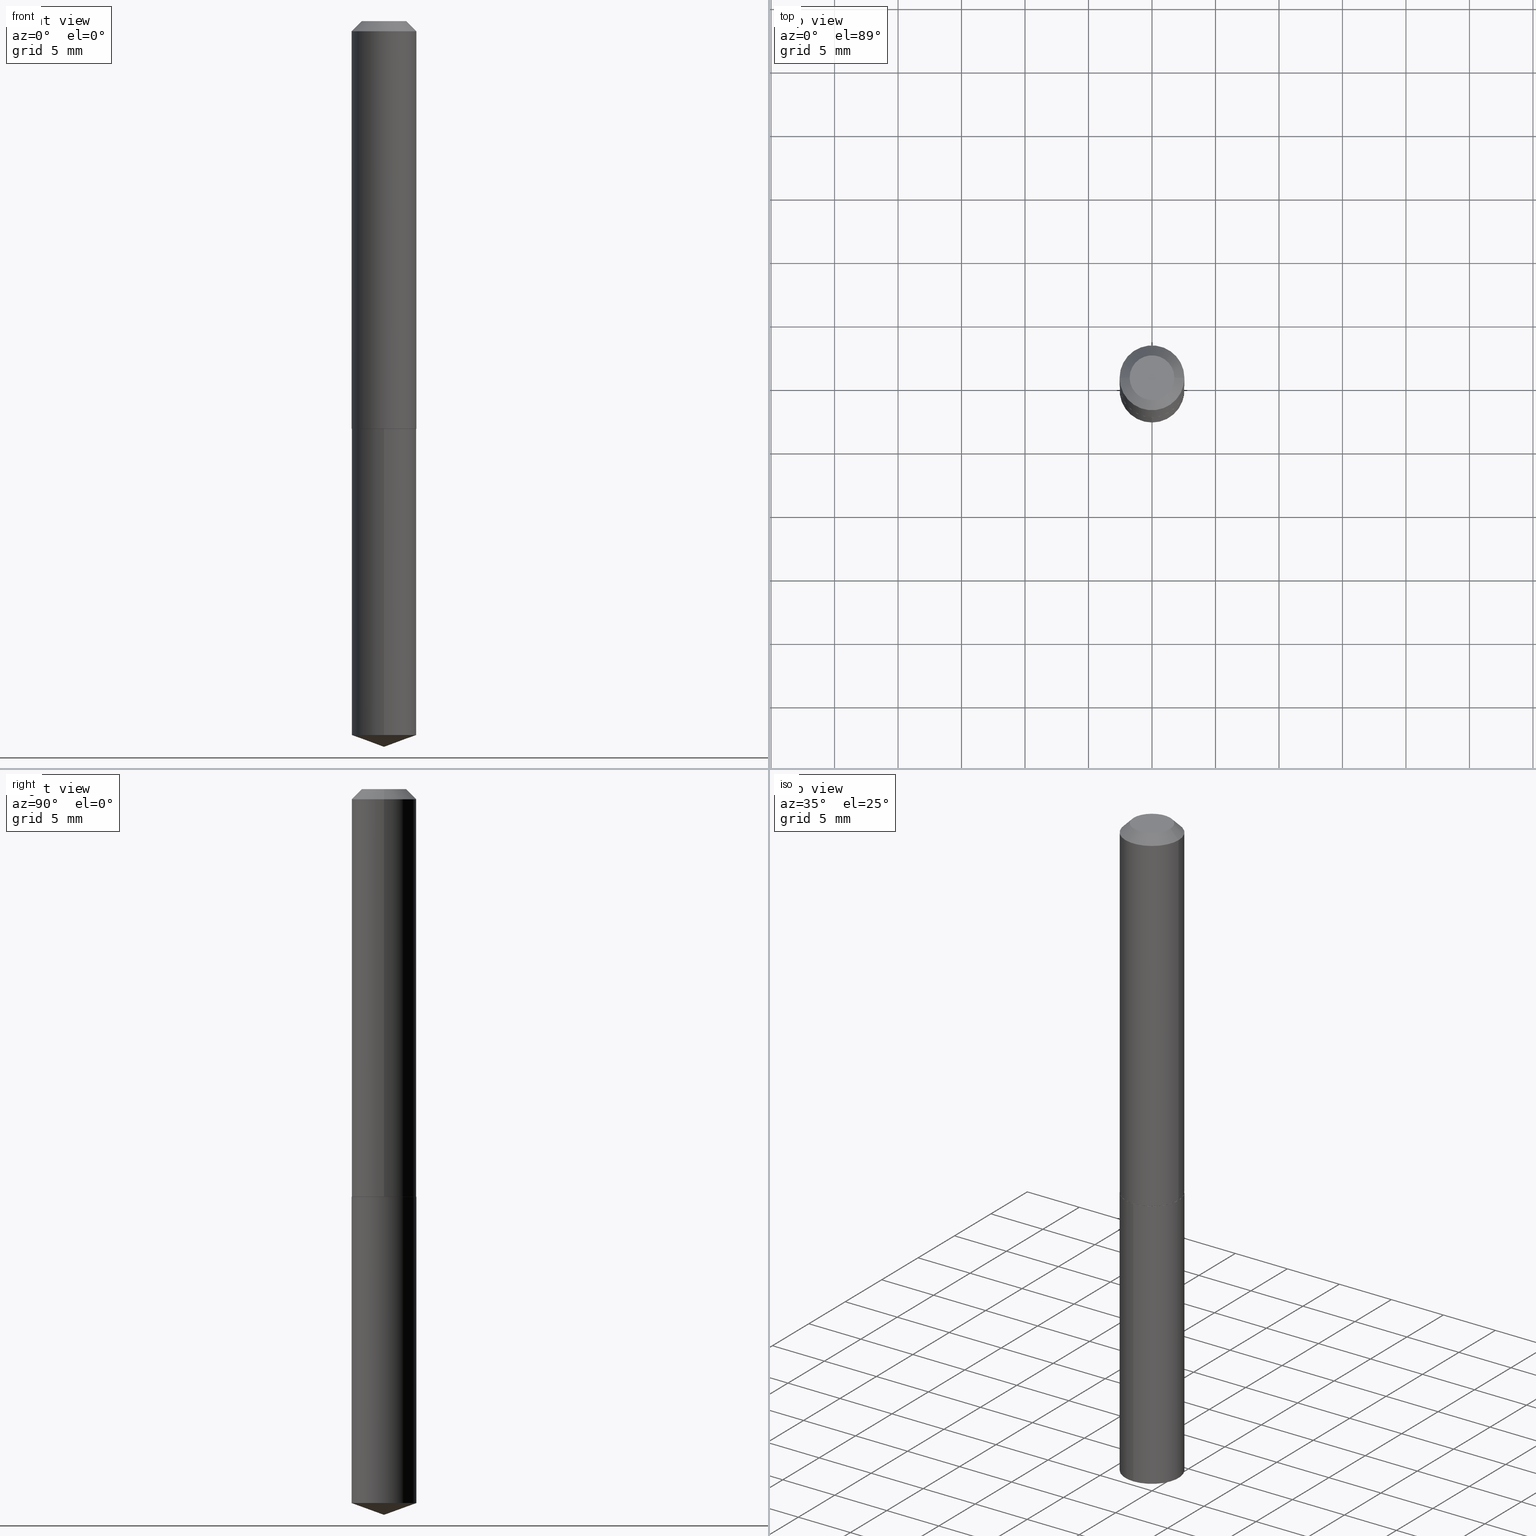
[diagram: canonical four-view strip — front | top / right | iso, engineering-drawing reading convention]
A machine part, canonical four-view strip (front | top / right | iso — engineering-drawing reading convention). The complete STEP part file that produces these views, byte-faithful:
ISO-10303-21;
HEADER;
FILE_DESCRIPTION (( 'STEP AP203' ),
    '1' );
FILE_NAME ('56216.STEP',
    '2024-04-22T21:00:10',
    ( '' ),
    ( '' ),
    'SwSTEP 2.0',
    'SolidWorks 2023',
    '' );
FILE_SCHEMA (( 'CONFIG_CONTROL_DESIGN' ));
ENDSEC;

DATA;
#1 = EDGE_LOOP ( 'NONE', ( #17, #91 ) ) ;
#2 = PERSON_AND_ORGANIZATION ( #50, #258 ) ;
#3 = AXIS2_PLACEMENT_3D ( 'NONE', #63, #186, #180 ) ;
#4 = CARTESIAN_POINT ( 'NONE',  ( 3.088627102211827979E-29, -4.409740930958893142E-15, -1.263000000000000123 ) ) ;
#5 = CARTESIAN_POINT ( 'NONE',  ( 3.088627102211827979E-29, -4.409740930958893142E-15, -1.263000000000000123 ) ) ;
#6 = CARTESIAN_POINT ( 'NONE',  ( 3.089849836614920220E-29, -4.411486671628314645E-15, -1.263500000000000068 ) ) ;
#7 = EDGE_CURVE ( 'NONE', #239, #274, #223, .T. ) ;
#8 = ORIENTED_EDGE ( 'NONE', *, *, #114, .T. ) ;
#9 = DIRECTION ( 'NONE',  ( 2.438088387897960049E-29, -3.491481338843145188E-15, -1.000000000000000000 ) ) ;
#10 = PLANE ( 'NONE',  #82 ) ;
#11 = EDGE_LOOP ( 'NONE', ( #272, #166, #182, #125 ) ) ;
#12 = APPROVAL_DATE_TIME ( #316, #390 ) ;
#13 = CARTESIAN_POINT ( 'NONE',  ( -0.1005000000000001864, -3.695645481519991426E-15, -1.263000000000000123 ) ) ;
#14 = AXIS2_PLACEMENT_3D ( 'NONE', #5, #187, #322 ) ;
#15 = CONICAL_SURFACE ( 'NONE', #32, 0.1005000000000000060, 0.7853981633974450594 ) ;
#16 = VERTEX_POINT ( 'NONE', #365 ) ;
#17 = ORIENTED_EDGE ( 'NONE', *, *, #311, .T. ) ;
#18 = DIRECTION ( 'NONE',  ( 0.7071067811865452413, -7.319954787623248157E-15, -0.7071067811865497932 ) ) ;
#19 = AXIS2_PLACEMENT_3D ( 'NONE', #363, #100, #36 ) ;
#20 = CC_DESIGN_SECURITY_CLASSIFICATION ( #113, ( #155 ) ) ;
#21 = CARTESIAN_POINT ( 'NONE',  ( 0.000000000000000000, 0.000000000000000000, 0.000000000000000000 ) ) ;
#22 = CARTESIAN_POINT ( 'NONE',  ( -0.1005000000000000893, 7.140954494389013210E-16, -4.943529765706185016E-30 ) ) ;
#23 = ADVANCED_FACE ( 'NONE', ( #222 ), #339, .T. ) ;
#24 = CIRCLE ( 'NONE', #261, 0.1000000000000001582 ) ;
#25 = EDGE_LOOP ( 'NONE', ( #299, #128, #185, #93 ) ) ;
#26 = ORIENTED_EDGE ( 'NONE', *, *, #41, .T. ) ;
#27 = DIRECTION ( 'NONE',  ( 1.000000000000000000, -6.982962677686266711E-15, 0.000000000000000000 ) ) ;
#28 = ORIENTED_EDGE ( 'NONE', *, *, #68, .T. ) ;
#29 = DIRECTION ( 'NONE',  ( -1.000000000000000000, 6.982962677686266711E-15, 0.000000000000000000 ) ) ;
#30 = PERSON_AND_ORGANIZATION ( #50, #258 ) ;
#31 = AXIS2_PLACEMENT_3D ( 'NONE', #107, #375, #99 ) ;
#32 = AXIS2_PLACEMENT_3D ( 'NONE', #183, #385, #29 ) ;
#33 = ORIENTED_EDGE ( 'NONE', *, *, #109, .F. ) ;
#34 = PERSON_AND_ORGANIZATION ( #50, #258 ) ;
#35 = FACE_OUTER_BOUND ( 'NONE', #156, .T. ) ;
#36 = DIRECTION ( 'NONE',  ( 1.000000000000000000, -6.982962677686267499E-15, 4.876166693236633478E-29 ) ) ;
#37 = DIRECTION ( 'NONE',  ( -2.445468806185136597E-29, 3.491481338843145583E-15, 1.000000000000000000 ) ) ;
#38 = APPROVAL_ROLE ( '' ) ;
#39 = CARTESIAN_POINT ( 'NONE',  ( 3.088627102211827979E-29, -4.409740930958893142E-15, -1.263000000000000123 ) ) ;
#40 = DIRECTION ( 'NONE',  ( -1.000000000000000000, 6.982962677686266711E-15, 0.000000000000000000 ) ) ;
#41 = EDGE_CURVE ( 'NONE', #72, #58, #51, .T. ) ;
#42 = FACE_OUTER_BOUND ( 'NONE', #1, .T. ) ;
#43 = EDGE_LOOP ( 'NONE', ( #286, #207, #150, #370 ) ) ;
#44 = CARTESIAN_POINT ( 'NONE',  ( 3.089849836614920220E-29, -4.411486671628314645E-15, -1.263500000000000068 ) ) ;
#45 = CARTESIAN_POINT ( 'NONE',  ( 7.140954494389547664E-16, 0.1004999999999922899, -2.213420991456247044 ) ) ;
#46 = ADVANCED_FACE ( 'NONE', ( #309 ), #269, .T. ) ;
#47 = APPROVAL_PERSON_ORGANIZATION ( #284, #390, #81 ) ;
#48 = DIRECTION ( 'NONE',  ( -6.982962677686265922E-15, -1.000000000000000000, 2.718256710113694497E-15 ) ) ;
#49 = PRODUCT_DEFINITION ( 'UNKNOWN', '', #155, #54 ) ;
#50 = PERSON ( 'UNSPECIFIED', 'UNSPECIFIED', 'UNSPECIFIED', ('UNSPECIFIED'), ('UNSPECIFIED'), ('UNSPECIFIED') ) ;
#51 = CIRCLE ( 'NONE', #65, 0.1005000000000000060 ) ;
#52 = APPROVAL_PERSON_ORGANIZATION ( #228, #334, #264 ) ;
#53 = CC_DESIGN_DATE_AND_TIME_ASSIGNMENT ( #332, #71, ( #49 ) ) ;
#54 = DESIGN_CONTEXT ( 'detailed design', #226, 'design' ) ;
#55 = DIRECTION ( 'NONE',  ( -6.982962677686268288E-15, -1.000000000000000000, 3.475157955500721397E-15 ) ) ;
#56 = LOCAL_TIME ( 17, 0, 10.00000000000000000, #88 ) ;
#57 = DIRECTION ( 'NONE',  ( -2.445407863595241292E-29, 3.491568612100512464E-15, 1.000000000000000000 ) ) ;
#58 = VERTEX_POINT ( 'NONE', #45 ) ;
#59 = PRODUCT_DEFINITION_SHAPE ( 'NONE', 'NONE',  #49 ) ;
#60 = DIRECTION ( 'NONE',  ( 1.000000000000000000, -6.982962677686265922E-15, 4.876176775795935793E-29 ) ) ;
#61 = CALENDAR_DATE ( 2024, 22, 4 ) ;
#62 = ORIENTED_EDGE ( 'NONE', *, *, #116, .T. ) ;
#63 = CARTESIAN_POINT ( 'NONE',  ( 7.642090019328600035E-31, -1.091087918388489897E-16, -0.03125000000000020123 ) ) ;
#64 = PERSON_AND_ORGANIZATION_ROLE ( 'design_supplier' ) ;
#65 = AXIS2_PLACEMENT_3D ( 'NONE', #101, #195, #338 ) ;
#66 = CC_DESIGN_PERSON_AND_ORGANIZATION_ASSIGNMENT ( #34, #129, ( #113 ) ) ;
#67 = VECTOR ( 'NONE', #18, 39.37007874015748143 ) ;
#68 = EDGE_CURVE ( 'NONE', #72, #298, #256, .T. ) ;
#69 = CARTESIAN_POINT ( 'NONE',  ( -0.1000000000000001582, -3.698294708694102627E-15, -1.263500000000000290 ) ) ;
#70 = DIRECTION ( 'NONE',  ( 1.000000000000000000, -6.982962677686267499E-15, 4.876166693236633478E-29 ) ) ;
#71 = DATE_TIME_ROLE ( 'creation_date' ) ;
#72 = VERTEX_POINT ( 'NONE', #75 ) ;
#73 = DATE_AND_TIME ( #184, #368 ) ;
#74 = DIRECTION ( 'NONE',  ( -6.982962677686265922E-15, -1.000000000000000000, 2.718256710113694497E-15 ) ) ;
#75 = CARTESIAN_POINT ( 'NONE',  ( -7.017877491074157398E-16, -0.1005000000000077498, -2.213420991456246600 ) ) ;
#76 = CLOSED_SHELL ( 'NONE', ( #358, #232, #168, #205, #377 ) ) ;
#77 = VECTOR ( 'NONE', #386, 39.37007874015748143 ) ;
#78 = ORIENTED_EDGE ( 'NONE', *, *, #116, .F. ) ;
#79 = EDGE_CURVE ( 'NONE', #179, #94, #366, .T. ) ;
#80 = LINE ( 'NONE', #198, #378 ) ;
#81 = APPROVAL_ROLE ( '' ) ;
#82 = AXIS2_PLACEMENT_3D ( 'NONE', #44, #285, #197 ) ;
#83 = CC_DESIGN_PERSON_AND_ORGANIZATION_ASSIGNMENT ( #30, #64, ( #155 ) ) ;
#84 = AXIS2_PLACEMENT_3D ( 'NONE', #278, #312, #48 ) ;
#85 = CARTESIAN_POINT ( 'NONE',  ( 6.795476340220440399E-30, -7.863176611623106484E-15, -1.263500000000000290 ) ) ;
#86 = CARTESIAN_POINT ( 'NONE',  ( -0.06925000000000000600, 5.381245613491975063E-16, -1.836970198756736818E-19 ) ) ;
#87 = APPLICATION_PROTOCOL_DEFINITION ( 'international standard', 'config_control_design', 1994, #226 ) ;
#88 = COORDINATED_UNIVERSAL_TIME_OFFSET ( 5, 0, .BEHIND. ) ;
#89 = FACE_OUTER_BOUND ( 'NONE', #105, .T. ) ;
#90 = CONICAL_SURFACE ( 'NONE', #255, 108.1684023407334223, 1.221730476396031495 ) ;
#91 = ORIENTED_EDGE ( 'NONE', *, *, #194, .T. ) ;
#92 = PERSON_AND_ORGANIZATION_ROLE ( 'design_owner' ) ;
#93 = ORIENTED_EDGE ( 'NONE', *, *, #79, .F. ) ;
#94 = VERTEX_POINT ( 'NONE', #336 ) ;
#95 = PERSON_AND_ORGANIZATION_ROLE ( 'creator' ) ;
#96 = ORIENTED_EDGE ( 'NONE', *, *, #279, .T. ) ;
#97 = EDGE_CURVE ( 'NONE', #214, #16, #24, .T. ) ;
#98 = AXIS2_PLACEMENT_3D ( 'NONE', #351, #319, #27 ) ;
#99 = DIRECTION ( 'NONE',  ( 1.000000000000000000, -6.982962677686267499E-15, 0.000000000000000000 ) ) ;
#100 = DIRECTION ( 'NONE',  ( -2.445468806185136597E-29, 3.491481338843145583E-15, 1.000000000000000000 ) ) ;
#101 = CARTESIAN_POINT ( 'NONE',  ( 5.412794098916213992E-29, -7.728200989372345435E-15, -2.213420991456246600 ) ) ;
#102 = CYLINDRICAL_SURFACE ( 'NONE', #246, 0.1005000000000000060 ) ;
#103 = CIRCLE ( 'NONE', #212, 0.1005000000000000060 ) ;
#104 = EDGE_CURVE ( 'NONE', #16, #214, #276, .T. ) ;
#105 = EDGE_LOOP ( 'NONE', ( #158, #8, #28, #244 ) ) ;
#106 = CARTESIAN_POINT ( 'NONE',  ( 5.502167693089292275E-29, -7.856029377226152946E-15, -2.250000000000000000 ) ) ;
#107 = CARTESIAN_POINT ( 'NONE',  ( 3.088627102211827979E-29, -4.409740930958893142E-15, -1.263000000000000123 ) ) ;
#108 = DIRECTION ( 'NONE',  ( -2.445468806185136597E-29, 3.491481338843145583E-15, 1.000000000000000000 ) ) ;
#109 = EDGE_CURVE ( 'NONE', #94, #235, #80, .T. ) ;
#110 = MANIFOLD_SOLID_BREP ( 'Body-Move/Copy2[2]', #236 ) ;
#111 = UNCERTAINTY_MEASURE_WITH_UNIT (LENGTH_MEASURE( 1.000000000000000082E-05 ), #227, 'distance_accuracy_value', 'NONE');
#112 = FACE_OUTER_BOUND ( 'NONE', #134, .T. ) ;
#113 = SECURITY_CLASSIFICATION ( '', '', #157 ) ;
#114 = EDGE_CURVE ( 'NONE', #58, #72, #253, .T. ) ;
#115 = PERSON_AND_ORGANIZATION ( #50, #258 ) ;
#116 = EDGE_CURVE ( 'NONE', #94, #179, #346, .T. ) ;
#117 = DIRECTION ( 'NONE',  ( -2.445407863595241292E-29, 3.491568612100512464E-15, 1.000000000000000000 ) ) ;
#118 = ORIENTED_EDGE ( 'NONE', *, *, #361, .F. ) ;
#119 =( NAMED_UNIT ( * ) SI_UNIT ( $, .STERADIAN. ) SOLID_ANGLE_UNIT ( ) );
#120 = AXIS2_PLACEMENT_3D ( 'NONE', #333, #9, #133 ) ;
#121 = VERTEX_POINT ( 'NONE', #326 ) ;
#122 = LINE ( 'NONE', #208, #238 ) ;
#123 = PERSON_AND_ORGANIZATION ( #50, #258 ) ;
#124 = ADVANCED_FACE ( 'NONE', ( #318 ), #297, .T. ) ;
#125 = ORIENTED_EDGE ( 'NONE', *, *, #164, .F. ) ;
#126 =( NAMED_UNIT ( * ) PLANE_ANGLE_UNIT ( ) SI_UNIT ( $, .RADIAN. ) );
#127 = DIRECTION ( 'NONE',  ( -2.445407863595241292E-29, 3.491568612100512464E-15, 1.000000000000000000 ) ) ;
#128 = ORIENTED_EDGE ( 'NONE', *, *, #97, .T. ) ;
#129 = PERSON_AND_ORGANIZATION_ROLE ( 'classification_officer' ) ;
#130 = ORIENTED_EDGE ( 'NONE', *, *, #211, .T. ) ;
#131 = DIRECTION ( 'NONE',  ( -6.561838499445203218E-15, -0.9396926207859074287, 0.3420201433256712664 ) ) ;
#132 = EDGE_LOOP ( 'NONE', ( #62, #165, #280, #33 ) ) ;
#133 = DIRECTION ( 'NONE',  ( -1.000000000000000000, 6.982962677686265922E-15, -4.876176775795935793E-29 ) ) ;
#134 = EDGE_LOOP ( 'NONE', ( #206, #355 ) ) ;
#135 = LINE ( 'NONE', #344, #293 ) ;
#136 = APPLICATION_CONTEXT ( 'configuration controlled 3d designs of mechanical parts and assemblies' ) ;
#137 = APPROVAL ( #275, 'UNSPECIFIED' ) ;
#138 = CARTESIAN_POINT ( 'NONE',  ( 0.000000000000000000, 0.000000000000000000, 0.000000000000000000 ) ) ;
#139 = LINE ( 'NONE', #315, #67 ) ;
#140 = DIRECTION ( 'NONE',  ( -2.445468806185136597E-29, 3.491481338843145583E-15, 1.000000000000000000 ) ) ;
#141 = ADVANCED_FACE ( 'NONE', ( #112 ), #230, .F. ) ;
#142 = DIRECTION ( 'NONE',  ( -2.445407863595241292E-29, 3.491568612100512464E-15, 1.000000000000000000 ) ) ;
#143 =( LENGTH_UNIT ( ) NAMED_UNIT ( * ) SI_UNIT ( $, .METRE. ) );
#144 = ADVANCED_BREP_SHAPE_REPRESENTATION ( '56216', ( #374, #110, #225 ), #178 ) ;
#145 = DIRECTION ( 'NONE',  ( -2.445468806185136877E-29, 3.491481338843145188E-15, 1.000000000000000000 ) ) ;
#146 = AXIS2_PLACEMENT_3D ( 'NONE', #21, #237, #149 ) ;
#147 = APPROVAL_STATUS ( 'not_yet_approved' ) ;
#148 = EDGE_LOOP ( 'NONE', ( #26, #130, #210, #384 ) ) ;
#149 = DIRECTION ( 'NONE',  ( 1.000000000000000000, -6.982962677686266711E-15, 4.876176775795935793E-29 ) ) ;
#150 = ORIENTED_EDGE ( 'NONE', *, *, #7, .T. ) ;
#151 = CC_DESIGN_PERSON_AND_ORGANIZATION_ASSIGNMENT ( #123, #242, ( #49 ) ) ;
#152 = CARTESIAN_POINT ( 'NONE',  ( 0.1005000000000000060, -8.108965409463188774E-16, -0.03125000000000020123 ) ) ;
#153 = FACE_OUTER_BOUND ( 'NONE', #267, .T. ) ;
#154 = VECTOR ( 'NONE', #257, 39.37007874015748143 ) ;
#155 = PRODUCT_DEFINITION_FORMATION_WITH_SPECIFIED_SOURCE ( 'ANY', '', #387, .NOT_KNOWN. ) ;
#156 = EDGE_LOOP ( 'NONE', ( #169, #290 ) ) ;
#157 = SECURITY_CLASSIFICATION_LEVEL ( 'unclassified' ) ;
#158 = ORIENTED_EDGE ( 'NONE', *, *, #211, .F. ) ;
#159 = FACE_OUTER_BOUND ( 'NONE', #43, .T. ) ;
#160 = PERSON_AND_ORGANIZATION ( #50, #258 ) ;
#161 = DIRECTION ( 'NONE',  ( 1.000000000000000000, -6.982962677686263555E-15, 0.000000000000000000 ) ) ;
#162 = DIRECTION ( 'NONE',  ( 0.7071067811864388819, -2.468850131081119129E-15, 0.7071067811866561525 ) ) ;
#163 = CALENDAR_DATE ( 2024, 22, 4 ) ;
#164 = EDGE_CURVE ( 'NONE', #274, #235, #359, .T. ) ;
#165 = ORIENTED_EDGE ( 'NONE', *, *, #202, .T. ) ;
#166 = ORIENTED_EDGE ( 'NONE', *, *, #79, .T. ) ;
#167 = PRODUCT_RELATED_PRODUCT_CATEGORY ( 'detail', '', ( #387 ) ) ;
#168 = ADVANCED_FACE ( 'NONE', ( #153 ), #90, .T. ) ;
#169 = ORIENTED_EDGE ( 'NONE', *, *, #335, .T. ) ;
#170 = DIRECTION ( 'NONE',  ( 6.676917655467968129E-15, 0.9396926207859097602, 0.3420201433256646606 ) ) ;
#171 = AXIS2_PLACEMENT_3D ( 'NONE', #306, #376, #40 ) ;
#172 = DIRECTION ( 'NONE',  ( 1.000000000000000000, -6.982962677686263555E-15, 0.000000000000000000 ) ) ;
#173 = DATE_AND_TIME ( #163, #331 ) ;
#174 = CARTESIAN_POINT ( 'NONE',  ( -9.077365544749331106E-28, 1.296074120775940767E-13, 37.12007874015748143 ) ) ;
#175 = LENGTH_MEASURE_WITH_UNIT ( LENGTH_MEASURE( 0.02539999999999999897 ), #143 );
#176 = CARTESIAN_POINT ( 'NONE',  ( -9.077365544749331106E-28, 1.296074120775940767E-13, 37.12007874015748143 ) ) ;
#177 = DIRECTION ( 'NONE',  ( -0.7071067811864388819, 7.493145998869961307E-15, 0.7071067811866561525 ) ) ;
#178 =( GEOMETRIC_REPRESENTATION_CONTEXT ( 3 ) GLOBAL_UNCERTAINTY_ASSIGNED_CONTEXT ( ( #111 ) ) GLOBAL_UNIT_ASSIGNED_CONTEXT ( ( #227, #126, #119 ) ) REPRESENTATION_CONTEXT ( 'NONE', 'WORKASPACE' ) );
#179 = VERTEX_POINT ( 'NONE', #270 ) ;
#180 = DIRECTION ( 'NONE',  ( 1.000000000000000000, -6.982962677686266711E-15, 0.000000000000000000 ) ) ;
#181 = DATE_AND_TIME ( #325, #56 ) ;
#182 = ORIENTED_EDGE ( 'NONE', *, *, #109, .T. ) ;
#183 = CARTESIAN_POINT ( 'NONE',  ( 7.642090019328600035E-31, -1.091087918388489897E-16, -0.03125000000000020123 ) ) ;
#184 = CALENDAR_DATE ( 2024, 22, 4 ) ;
#185 = ORIENTED_EDGE ( 'NONE', *, *, #303, .T. ) ;
#186 = DIRECTION ( 'NONE',  ( -2.445468806185136597E-29, 3.491481338843145583E-15, 1.000000000000000000 ) ) ;
#187 = DIRECTION ( 'NONE',  ( -2.445468806185136597E-29, 3.491481338843145583E-15, 1.000000000000000000 ) ) ;
#188 = COORDINATED_UNIVERSAL_TIME_OFFSET ( 5, 0, .BEHIND. ) ;
#189 = DIRECTION ( 'NONE',  ( 1.000000000000000000, -6.982962677686267499E-15, 0.000000000000000000 ) ) ;
#190 = DIRECTION ( 'NONE',  ( -2.445468806185136597E-29, 3.491481338843145583E-15, 1.000000000000000000 ) ) ;
#191 = VECTOR ( 'NONE', #177, 39.37007874015748143 ) ;
#192 = DIRECTION ( 'NONE',  ( -6.982962677686265922E-15, -1.000000000000000000, 2.718256710113694497E-15 ) ) ;
#193 = COORDINATED_UNIVERSAL_TIME_OFFSET ( 5, 0, .BEHIND. ) ;
#194 = EDGE_CURVE ( 'NONE', #121, #298, #103, .T. ) ;
#195 = DIRECTION ( 'NONE',  ( -2.445407863595241292E-29, 3.491568612100512464E-15, 1.000000000000000000 ) ) ;
#196 = CARTESIAN_POINT ( 'NONE',  ( 3.089849836614920220E-29, -4.411486671628314645E-15, -1.263500000000000068 ) ) ;
#197 = DIRECTION ( 'NONE',  ( 6.982962677686265922E-15, 1.000000000000000000, -3.491568612100512070E-15 ) ) ;
#198 = CARTESIAN_POINT ( 'NONE',  ( 0.1005000000000000893, -7.017877491074704671E-16, 4.900557659674919900E-30 ) ) ;
#199 = AXIS2_PLACEMENT_3D ( 'NONE', #4, #389, #189 ) ;
#200 = VECTOR ( 'NONE', #362, 39.37007874015748143 ) ;
#201 = CC_DESIGN_APPROVAL ( #137, ( #155 ) ) ;
#202 = EDGE_CURVE ( 'NONE', #179, #274, #234, .T. ) ;
#203 = DIRECTION ( 'NONE',  ( -2.438088387897960049E-29, 3.491481338843145188E-15, 1.000000000000000000 ) ) ;
#204 = CONICAL_SURFACE ( 'NONE', #199, 0.1005000000000001864, 0.7853981633972946241 ) ;
#205 = ADVANCED_FACE ( 'NONE', ( #89 ), #263, .T. ) ;
#206 = ORIENTED_EDGE ( 'NONE', *, *, #104, .F. ) ;
#207 = ORIENTED_EDGE ( 'NONE', *, *, #335, .F. ) ;
#208 = CARTESIAN_POINT ( 'NONE',  ( 5.502167693089292275E-29, -7.856029377226152946E-15, -2.250000000000000000 ) ) ;
#209 = COORDINATED_UNIVERSAL_TIME_OFFSET ( 5, 0, .BEHIND. ) ;
#210 = ORIENTED_EDGE ( 'NONE', *, *, #311, .F. ) ;
#211 = EDGE_CURVE ( 'NONE', #58, #121, #249, .T. ) ;
#212 = AXIS2_PLACEMENT_3D ( 'NONE', #292, #57, #265 ) ;
#213 = DIRECTION ( 'NONE',  ( -6.982962677686265922E-15, -1.000000000000000000, 2.718256710113694497E-15 ) ) ;
#214 = VERTEX_POINT ( 'NONE', #69 ) ;
#215 = DIRECTION ( 'NONE',  ( -2.445468806185136597E-29, 3.491481338843145583E-15, 1.000000000000000000 ) ) ;
#216 = DIRECTION ( 'NONE',  ( -2.445407863595241292E-29, 3.491568612100512464E-15, 1.000000000000000000 ) ) ;
#217 = ORIENTED_EDGE ( 'NONE', *, *, #114, .F. ) ;
#218 = ADVANCED_FACE ( 'NONE', ( #302 ), #204, .T. ) ;
#219 = ORIENTED_EDGE ( 'NONE', *, *, #279, .F. ) ;
#220 = AXIS2_PLACEMENT_3D ( 'NONE', #138, #140, #248 ) ;
#221 = CONICAL_SURFACE ( 'NONE', #171, 0.1005000000000000060, 0.7853981633974450594 ) ;
#222 = FACE_OUTER_BOUND ( 'NONE', #132, .T. ) ;
#223 = LINE ( 'NONE', #250, #200 ) ;
#224 = DIRECTION ( 'NONE',  ( 1.000000000000000000, -6.982962677686267499E-15, 0.000000000000000000 ) ) ;
#225 = AXIS2_PLACEMENT_3D ( 'NONE', #380, #251, #323 ) ;
#226 = APPLICATION_CONTEXT ( 'configuration controlled 3d designs of mechanical parts and assemblies' ) ;
#227 =( CONVERSION_BASED_UNIT ( 'INCH', #175 ) LENGTH_UNIT ( ) NAMED_UNIT ( #383 ) );
#228 = PERSON_AND_ORGANIZATION ( #50, #258 ) ;
#229 = AXIS2_PLACEMENT_3D ( 'NONE', #357, #215, #70 ) ;
#230 = PLANE ( 'NONE',  #287 ) ;
#231 = LOCAL_TIME ( 17, 0, 10.00000000000000000, #193 ) ;
#232 = ADVANCED_FACE ( 'NONE', ( #364 ), #247, .T. ) ;
#233 = EDGE_CURVE ( 'NONE', #214, #179, #308, .T. ) ;
#234 = LINE ( 'NONE', #22, #350 ) ;
#235 = VERTEX_POINT ( 'NONE', #152 ) ;
#236 = CLOSED_SHELL ( 'NONE', ( #345, #23, #46, #141, #218, #124, #295, #342 ) ) ;
#237 = DIRECTION ( 'NONE',  ( -2.445468806185136597E-29, 3.491481338843145583E-15, 1.000000000000000000 ) ) ;
#238 = VECTOR ( 'NONE', #131, 39.37007874015748854 ) ;
#239 = VERTEX_POINT ( 'NONE', #86 ) ;
#240 = CARTESIAN_POINT ( 'NONE',  ( -7.017877491074388140E-16, -0.1005000000000044191, -1.263499999999999845 ) ) ;
#241 = ORIENTED_EDGE ( 'NONE', *, *, #369, .T. ) ;
#242 = PERSON_AND_ORGANIZATION_ROLE ( 'creator' ) ;
#243 = CC_DESIGN_DATE_AND_TIME_ASSIGNMENT ( #173, #340, ( #113 ) ) ;
#244 = ORIENTED_EDGE ( 'NONE', *, *, #194, .F. ) ;
#245 = CARTESIAN_POINT ( 'NONE',  ( 0.06925000000000000600, -6.368391634802832925E-16, -1.836970198681843421E-19 ) ) ;
#246 = AXIS2_PLACEMENT_3D ( 'NONE', #196, #283, #192 ) ;
#247 = CONICAL_SURFACE ( 'NONE', #289, 108.1684023407334223, 1.221730476396031495 ) ;
#248 = DIRECTION ( 'NONE',  ( 1.000000000000000000, -6.982962677686266711E-15, 4.876176775795935793E-29 ) ) ;
#249 = LINE ( 'NONE', #329, #77 ) ;
#250 = CARTESIAN_POINT ( 'NONE',  ( -0.1005000000000000060, 5.926789572686209720E-16, -0.03125000000000020123 ) ) ;
#251 = DIRECTION ( 'NONE',  ( 0.000000000000000000, 0.000000000000000000, 1.000000000000000000 ) ) ;
#252 = ORIENTED_EDGE ( 'NONE', *, *, #373, .F. ) ;
#253 = CIRCLE ( 'NONE', #84, 0.1005000000000000060 ) ;
#254 = APPROVAL_STATUS ( 'not_yet_approved' ) ;
#255 = AXIS2_PLACEMENT_3D ( 'NONE', #176, #117, #55 ) ;
#256 = LINE ( 'NONE', #371, #154 ) ;
#257 = DIRECTION ( 'NONE',  ( -2.445407863595241292E-29, 3.491568612100512070E-15, 1.000000000000000000 ) ) ;
#258 = ORGANIZATION ( 'UNSPECIFIED', 'UNSPECIFIED', '' ) ;
#259 = DIRECTION ( 'NONE',  ( -6.982962677686268288E-15, -1.000000000000000000, 3.475157955500721397E-15 ) ) ;
#260 = CC_DESIGN_PERSON_AND_ORGANIZATION_ASSIGNMENT ( #115, #92, ( #387 ) ) ;
#261 = AXIS2_PLACEMENT_3D ( 'NONE', #341, #190, #161 ) ;
#262 = VECTOR ( 'NONE', #162, 39.37007874015748143 ) ;
#263 = CYLINDRICAL_SURFACE ( 'NONE', #314, 0.1005000000000000060 ) ;
#264 = APPROVAL_ROLE ( '' ) ;
#265 = DIRECTION ( 'NONE',  ( -6.982962677686265922E-15, -1.000000000000000000, 2.718256710113694497E-15 ) ) ;
#266 = EDGE_CURVE ( 'NONE', #235, #274, #277, .T. ) ;
#267 = EDGE_LOOP ( 'NONE', ( #118, #96, #217 ) ) ;
#268 = APPROVAL_DATE_TIME ( #181, #334 ) ;
#269 = CONICAL_SURFACE ( 'NONE', #313, 0.1005000000000001864, 0.7853981633972946241 ) ;
#270 = CARTESIAN_POINT ( 'NONE',  ( -0.1005000000000001864, -3.695645481519991426E-15, -1.263000000000000123 ) ) ;
#271 = CC_DESIGN_APPROVAL ( #334, ( #49 ) ) ;
#272 = ORIENTED_EDGE ( 'NONE', *, *, #202, .F. ) ;
#273 = ORIENTED_EDGE ( 'NONE', *, *, #233, .T. ) ;
#274 = VERTEX_POINT ( 'NONE', #301 ) ;
#275 = APPROVAL_STATUS ( 'not_yet_approved' ) ;
#276 = CIRCLE ( 'NONE', #320, 0.1000000000000001582 ) ;
#277 = CIRCLE ( 'NONE', #3, 0.1005000000000000060 ) ;
#278 = CARTESIAN_POINT ( 'NONE',  ( 5.412794098916213992E-29, -7.728200989372345435E-15, -2.213420991456246600 ) ) ;
#279 = EDGE_CURVE ( 'NONE', #352, #72, #122, .T. ) ;
#280 = ORIENTED_EDGE ( 'NONE', *, *, #266, .F. ) ;
#281 = SHAPE_DEFINITION_REPRESENTATION ( #59, #144 ) ;
#282 = EDGE_LOOP ( 'NONE', ( #219, #381, #307 ) ) ;
#283 = DIRECTION ( 'NONE',  ( -2.445407863595241292E-29, 3.491568612100512464E-15, 1.000000000000000000 ) ) ;
#284 = PERSON_AND_ORGANIZATION ( #50, #258 ) ;
#285 = DIRECTION ( 'NONE',  ( 2.445407863595241292E-29, -3.491568612100512070E-15, -1.000000000000000000 ) ) ;
#286 = ORIENTED_EDGE ( 'NONE', *, *, #369, .F. ) ;
#287 = AXIS2_PLACEMENT_3D ( 'NONE', #85, #203, #60 ) ;
#288 = FACE_OUTER_BOUND ( 'NONE', #330, .T. ) ;
#289 = AXIS2_PLACEMENT_3D ( 'NONE', #174, #142, #259 ) ;
#290 = ORIENTED_EDGE ( 'NONE', *, *, #373, .T. ) ;
#291 = CIRCLE ( 'NONE', #229, 0.06925000000000000600 ) ;
#292 = CARTESIAN_POINT ( 'NONE',  ( 3.089849836614920220E-29, -4.411486671628314645E-15, -1.263500000000000068 ) ) ;
#293 = VECTOR ( 'NONE', #170, 39.37007874015748854 ) ;
#294 = CC_DESIGN_APPROVAL ( #390, ( #113 ) ) ;
#295 = ADVANCED_FACE ( 'NONE', ( #159 ), #15, .T. ) ;
#296 = ORIENTED_EDGE ( 'NONE', *, *, #303, .F. ) ;
#297 = CYLINDRICAL_SURFACE ( 'NONE', #146, 0.1005000000000000893 ) ;
#298 = VERTEX_POINT ( 'NONE', #240 ) ;
#299 = ORIENTED_EDGE ( 'NONE', *, *, #233, .F. ) ;
#300 = CIRCLE ( 'NONE', #19, 0.06925000000000000600 ) ;
#301 = CARTESIAN_POINT ( 'NONE',  ( -0.1005000000000000060, -1.545329411959969209E-15, -0.03125000000000020123 ) ) ;
#302 = FACE_OUTER_BOUND ( 'NONE', #25, .T. ) ;
#303 = EDGE_CURVE ( 'NONE', #16, #94, #353, .T. ) ;
#304 = ORIENTED_EDGE ( 'NONE', *, *, #104, .T. ) ;
#305 = CARTESIAN_POINT ( 'NONE',  ( 3.089849836614920781E-29, -4.411486671628315434E-15, -1.263500000000000290 ) ) ;
#306 = CARTESIAN_POINT ( 'NONE',  ( 7.642090019328600035E-31, -1.091087918388489897E-16, -0.03125000000000020123 ) ) ;
#307 = ORIENTED_EDGE ( 'NONE', *, *, #41, .F. ) ;
#308 = LINE ( 'NONE', #13, #191 ) ;
#309 = FACE_OUTER_BOUND ( 'NONE', #388, .T. ) ;
#310 = CALENDAR_DATE ( 2024, 22, 4 ) ;
#311 = EDGE_CURVE ( 'NONE', #298, #121, #347, .T. ) ;
#312 = DIRECTION ( 'NONE',  ( -2.445407863595241292E-29, 3.491568612100512464E-15, 1.000000000000000000 ) ) ;
#313 = AXIS2_PLACEMENT_3D ( 'NONE', #39, #37, #224 ) ;
#314 = AXIS2_PLACEMENT_3D ( 'NONE', #348, #216, #74 ) ;
#315 = CARTESIAN_POINT ( 'NONE',  ( 0.1005000000000000060, -7.985888406148880235E-16, -0.03125000000000020123 ) ) ;
#316 = DATE_AND_TIME ( #310, #231 ) ;
#317 = LOCAL_TIME ( 17, 0, 10.00000000000000000, #337 ) ;
#318 = FACE_OUTER_BOUND ( 'NONE', #11, .T. ) ;
#319 = DIRECTION ( 'NONE',  ( -2.445468806185136597E-29, 3.491481338843145583E-15, 1.000000000000000000 ) ) ;
#320 = AXIS2_PLACEMENT_3D ( 'NONE', #305, #108, #172 ) ;
#321 = AXIS2_PLACEMENT_3D ( 'NONE', #6, #127, #213 ) ;
#322 = DIRECTION ( 'NONE',  ( 1.000000000000000000, -6.982962677686267499E-15, 0.000000000000000000 ) ) ;
#323 = DIRECTION ( 'NONE',  ( 1.000000000000000000, 0.000000000000000000, 0.000000000000000000 ) ) ;
#324 = VERTEX_POINT ( 'NONE', #245 ) ;
#325 = CALENDAR_DATE ( 2024, 22, 4 ) ;
#326 = CARTESIAN_POINT ( 'NONE',  ( 7.140954494389548650E-16, 0.1004999999999956067, -1.263500000000000290 ) ) ;
#327 = ORIENTED_EDGE ( 'NONE', *, *, #7, .F. ) ;
#328 = CARTESIAN_POINT ( 'NONE',  ( 0.1005000000000001864, -5.111528680066364398E-15, -1.263000000000000123 ) ) ;
#329 = CARTESIAN_POINT ( 'NONE',  ( 7.140954494389315936E-16, 0.1004999999999956067, -1.263500000000000290 ) ) ;
#330 = EDGE_LOOP ( 'NONE', ( #252, #241, #382, #327 ) ) ;
#331 = LOCAL_TIME ( 17, 0, 10.00000000000000000, #188 ) ;
#332 = DATE_AND_TIME ( #61, #317 ) ;
#333 = CARTESIAN_POINT ( 'NONE',  ( 2.246126659431974788E-48, -3.206873584422701658E-34, -9.184850993605067327E-20 ) ) ;
#334 = APPROVAL ( #147, 'UNSPECIFIED' ) ;
#335 = EDGE_CURVE ( 'NONE', #239, #324, #291, .T. ) ;
#336 = CARTESIAN_POINT ( 'NONE',  ( 0.1005000000000001864, -5.111528680066364398E-15, -1.263000000000000123 ) ) ;
#337 = COORDINATED_UNIVERSAL_TIME_OFFSET ( 5, 0, .BEHIND. ) ;
#338 = DIRECTION ( 'NONE',  ( -6.982962677686265922E-15, -1.000000000000000000, 2.718256710113694497E-15 ) ) ;
#339 = CYLINDRICAL_SURFACE ( 'NONE', #220, 0.1005000000000000893 ) ;
#340 = DATE_TIME_ROLE ( 'classification_date' ) ;
#341 = CARTESIAN_POINT ( 'NONE',  ( 3.089849836614920781E-29, -4.411486671628315434E-15, -1.263500000000000290 ) ) ;
#342 = ADVANCED_FACE ( 'NONE', ( #35 ), #360, .F. ) ;
#343 = DIRECTION ( 'NONE',  ( -2.445468806185136877E-29, 3.491481338843145188E-15, 1.000000000000000000 ) ) ;
#344 = CARTESIAN_POINT ( 'NONE',  ( 5.502323045429053023E-29, -7.855808837704786674E-15, -2.250000000000000000 ) ) ;
#345 = ADVANCED_FACE ( 'NONE', ( #288 ), #221, .T. ) ;
#346 = CIRCLE ( 'NONE', #14, 0.1005000000000001864 ) ;
#347 = CIRCLE ( 'NONE', #321, 0.1005000000000000060 ) ;
#348 = CARTESIAN_POINT ( 'NONE',  ( 3.089849836614920220E-29, -4.411486671628314645E-15, -1.263500000000000068 ) ) ;
#349 = MECHANICAL_CONTEXT ( 'NONE', #136, 'mechanical' ) ;
#350 = VECTOR ( 'NONE', #145, 39.37007874015748143 ) ;
#351 = CARTESIAN_POINT ( 'NONE',  ( 7.642090019328600035E-31, -1.091087918388489897E-16, -0.03125000000000020123 ) ) ;
#352 = VERTEX_POINT ( 'NONE', #106 ) ;
#353 = LINE ( 'NONE', #328, #262 ) ;
#354 = APPLICATION_PROTOCOL_DEFINITION ( 'international standard', 'config_control_design', 1994, #136 ) ;
#355 = ORIENTED_EDGE ( 'NONE', *, *, #97, .F. ) ;
#356 = APPROVAL_DATE_TIME ( #73, #137 ) ;
#357 = CARTESIAN_POINT ( 'NONE',  ( 4.492253318863949576E-48, -6.413747168845403315E-34, -1.836970198721013465E-19 ) ) ;
#358 = ADVANCED_FACE ( 'NONE', ( #372 ), #102, .T. ) ;
#359 = CIRCLE ( 'NONE', #98, 0.1005000000000000060 ) ;
#360 = PLANE ( 'NONE',  #120 ) ;
#361 = EDGE_CURVE ( 'NONE', #352, #58, #135, .T. ) ;
#362 = DIRECTION ( 'NONE',  ( -0.7071067811865452413, 2.468850131082233000E-15, -0.7071067811865497932 ) ) ;
#363 = CARTESIAN_POINT ( 'NONE',  ( 4.492253318863949576E-48, -6.413747168845403315E-34, -1.836970198721013465E-19 ) ) ;
#364 = FACE_OUTER_BOUND ( 'NONE', #282, .T. ) ;
#365 = CARTESIAN_POINT ( 'NONE',  ( 0.1000000000000001582, -5.109782939396942894E-15, -1.263500000000000290 ) ) ;
#366 = CIRCLE ( 'NONE', #31, 0.1005000000000001864 ) ;
#367 = CC_DESIGN_PERSON_AND_ORGANIZATION_ASSIGNMENT ( #2, #95, ( #155 ) ) ;
#368 = LOCAL_TIME ( 17, 0, 10.00000000000000000, #209 ) ;
#369 = EDGE_CURVE ( 'NONE', #324, #235, #139, .T. ) ;
#370 = ORIENTED_EDGE ( 'NONE', *, *, #164, .T. ) ;
#371 = CARTESIAN_POINT ( 'NONE',  ( -7.017877491074388140E-16, -0.1005000000000044191, -1.263499999999999845 ) ) ;
#372 = FACE_OUTER_BOUND ( 'NONE', #148, .T. ) ;
#373 = EDGE_CURVE ( 'NONE', #324, #239, #300, .T. ) ;
#374 = MANIFOLD_SOLID_BREP ( 'Body-Move/Copy2[1]', #76 ) ;
#375 = DIRECTION ( 'NONE',  ( -2.445468806185136597E-29, 3.491481338843145583E-15, 1.000000000000000000 ) ) ;
#376 = DIRECTION ( 'NONE',  ( 2.445468806185136597E-29, -3.491481338843145583E-15, -1.000000000000000000 ) ) ;
#377 = ADVANCED_FACE ( 'NONE', ( #42 ), #10, .F. ) ;
#378 = VECTOR ( 'NONE', #343, 39.37007874015748143 ) ;
#379 = APPROVAL_PERSON_ORGANIZATION ( #160, #137, #38 ) ;
#380 = CARTESIAN_POINT ( 'NONE',  ( 0.000000000000000000, 0.000000000000000000, 0.000000000000000000 ) ) ;
#381 = ORIENTED_EDGE ( 'NONE', *, *, #361, .T. ) ;
#382 = ORIENTED_EDGE ( 'NONE', *, *, #266, .T. ) ;
#383 = DIMENSIONAL_EXPONENTS ( 1.000000000000000000, 0.000000000000000000, 0.000000000000000000, 0.000000000000000000, 0.000000000000000000, 0.000000000000000000, 0.000000000000000000 ) ;
#384 = ORIENTED_EDGE ( 'NONE', *, *, #68, .F. ) ;
#385 = DIRECTION ( 'NONE',  ( 2.445468806185136597E-29, -3.491481338843145583E-15, -1.000000000000000000 ) ) ;
#386 = DIRECTION ( 'NONE',  ( -2.445407863595241292E-29, 3.491568612100512070E-15, 1.000000000000000000 ) ) ;
#387 = PRODUCT ( '56216', '56216', '', ( #349 ) ) ;
#388 = EDGE_LOOP ( 'NONE', ( #304, #273, #78, #296 ) ) ;
#389 = DIRECTION ( 'NONE',  ( -2.445468806185136597E-29, 3.491481338843145583E-15, 1.000000000000000000 ) ) ;
#390 = APPROVAL ( #254, 'UNSPECIFIED' ) ;
ENDSEC;
END-ISO-10303-21;
